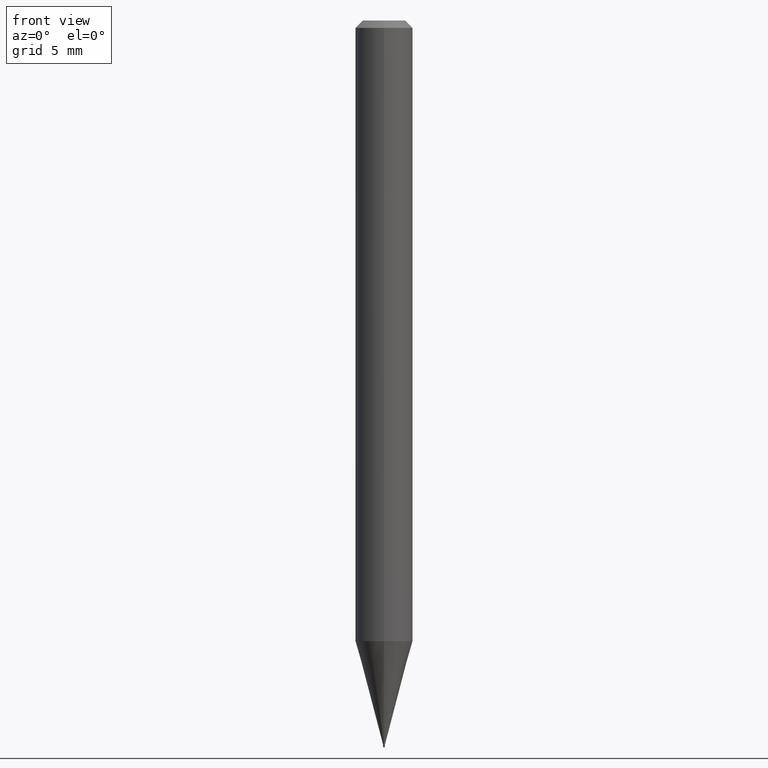
[diagram: clean part render]
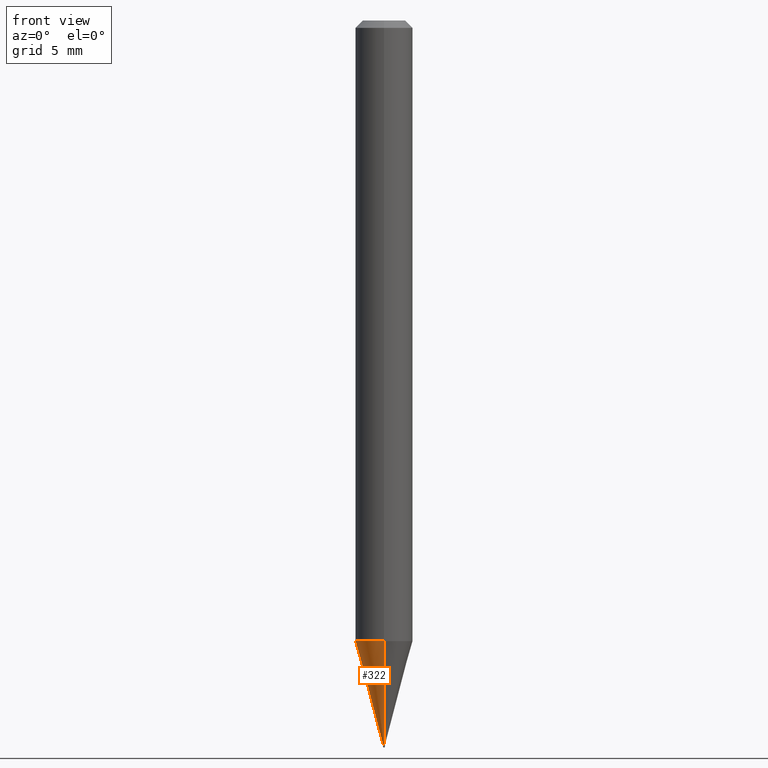
[diagram: same view with one face highlighted and labeled with its STEP entity id]
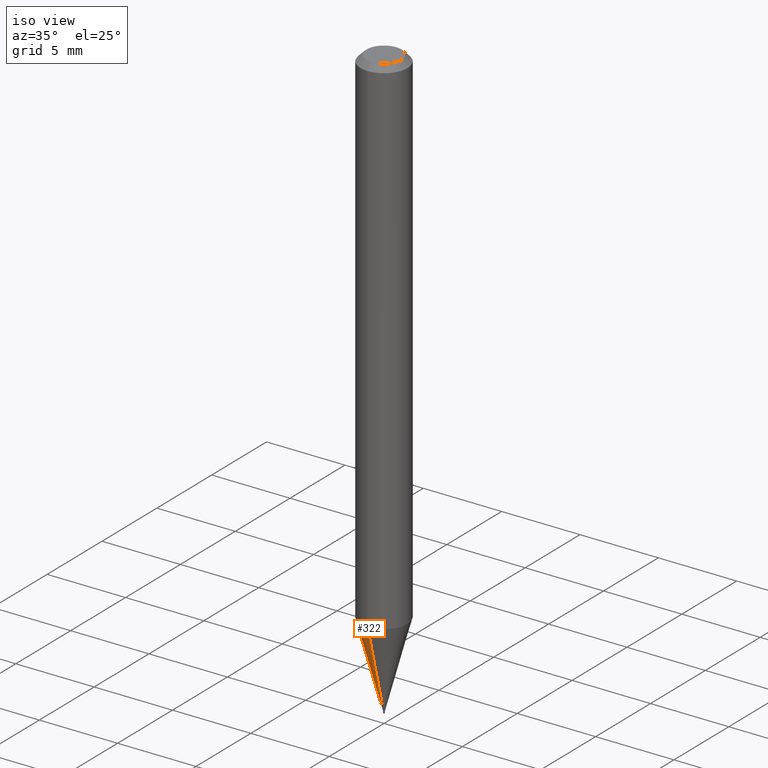
[diagram: same view with one face highlighted and labeled with its STEP entity id]
A machine part, front view. The second image highlights one B-rep face of the part: STEP entity #322.
A second angle (iso view) of the same face is appended — the face is thin or edge-on in the first view.
In plain terms, the highlighted conical surface has half-angle 15 deg.
Its self-contained STEP definition (entity closure, byte-faithful):
#8 = ORIENTED_EDGE ( 'NONE', *, *, #227, .F. ) ;
#27 = VERTEX_POINT ( 'NONE', #353 ) ;
#35 = ORIENTED_EDGE ( 'NONE', *, *, #347, .T. ) ;
#40 = DIRECTION ( 'NONE',  ( -6.982962677686266711E-15, -1.000000000000000000, 0.000000000000000000 ) ) ;
#65 = AXIS2_PLACEMENT_3D ( 'NONE', #220, #254, #223 ) ;
#66 = VERTEX_POINT ( 'NONE', #359 ) ;
#72 = DIRECTION ( 'NONE',  ( -2.446328802231448422E-29, 3.490249775556891925E-15, 1.000000000000000000 ) ) ;
#81 = DIRECTION ( 'NONE',  ( -1.807323732225385360E-15, -0.2588190451025260685, 0.9659258262890667579 ) ) ;
#94 = DIRECTION ( 'NONE',  ( -6.982962677686266711E-15, -1.000000000000000000, 0.000000000000000000 ) ) ;
#113 = CARTESIAN_POINT ( 'NONE',  ( 3.645519181085303666E-29, -5.201170215534880064E-15, -1.490199999999999747 ) ) ;
#114 = EDGE_CURVE ( 'NONE', #318, #66, #315, .T. ) ;
#153 = VERTEX_POINT ( 'NONE', #408 ) ;
#158 = CARTESIAN_POINT ( 'NONE',  ( -1.361677722144850050E-17, -0.001950000000004733971, -1.490199999999999747 ) ) ;
#180 = VECTOR ( 'NONE', #81, 39.37007874015748854 ) ;
#207 = AXIS2_PLACEMENT_3D ( 'NONE', #272, #72, #94 ) ;
#210 = CARTESIAN_POINT ( 'NONE',  ( -1.361677722144850050E-17, -0.001950000000004733971, -1.490199999999999747 ) ) ;
#220 = CARTESIAN_POINT ( 'NONE',  ( 3.124206265976151613E-29, -4.457397635456953837E-15, -1.277099898887823048 ) ) ;
#223 = DIRECTION ( 'NONE',  ( -6.982962677686265922E-15, -1.000000000000000000, 4.626330217890369336E-15 ) ) ;
#227 = EDGE_CURVE ( 'NONE', #27, #153, #474, .T. ) ;
#254 = DIRECTION ( 'NONE',  ( -2.446328802231448422E-29, 3.490249775556891925E-15, 1.000000000000000000 ) ) ;
#262 = ORIENTED_EDGE ( 'NONE', *, *, #451, .F. ) ;
#263 = DIRECTION ( 'NONE',  ( 1.839019923739656324E-15, 0.2588190451025328409, 0.9659258262890649815 ) ) ;
#265 = AXIS2_PLACEMENT_3D ( 'NONE', #113, #421, #40 ) ;
#272 = CARTESIAN_POINT ( 'NONE',  ( 3.645519181085303666E-29, -5.201170215534880064E-15, -1.490199999999999747 ) ) ;
#299 = ORIENTED_EDGE ( 'NONE', *, *, #114, .T. ) ;
#315 = LINE ( 'NONE', #210, #180 ) ;
#318 = VERTEX_POINT ( 'NONE', #158 ) ;
#322 = ADVANCED_FACE ( 'NONE', ( #407 ), #413, .T. ) ;
#327 = VECTOR ( 'NONE', #263, 39.37007874015748854 ) ;
#347 = EDGE_CURVE ( 'NONE', #27, #318, #392, .T. ) ;
#353 = CARTESIAN_POINT ( 'NONE',  ( 2.167155344068628460E-16, 0.001949999999994331485, -1.490199999999999747 ) ) ;
#359 = CARTESIAN_POINT ( 'NONE',  ( -4.123439461173428234E-16, -0.05905000000000444615, -1.277099898887822604 ) ) ;
#392 = CIRCLE ( 'NONE', #207, 0.001949999999999532619 ) ;
#407 = FACE_OUTER_BOUND ( 'NONE', #512, .T. ) ;
#408 = CARTESIAN_POINT ( 'NONE',  ( 4.195754854663702585E-16, 0.05904999999999554355, -1.277099898887823270 ) ) ;
#413 = CONICAL_SURFACE ( 'NONE', #265, 0.001949999999999532619, 0.2617993877991584561 ) ;
#421 = DIRECTION ( 'NONE',  ( -2.446328802231448422E-29, 3.490249775556891925E-15, 1.000000000000000000 ) ) ;
#424 = CIRCLE ( 'NONE', #65, 0.05904999999999999832 ) ;
#437 = CARTESIAN_POINT ( 'NONE',  ( 1.385558334735508515E-17, 0.001949999999994331485, -1.490199999999999747 ) ) ;
#451 = EDGE_CURVE ( 'NONE', #153, #66, #424, .T. ) ;
#474 = LINE ( 'NONE', #437, #327 ) ;
#512 = EDGE_LOOP ( 'NONE', ( #8, #35, #299, #262 ) ) ;